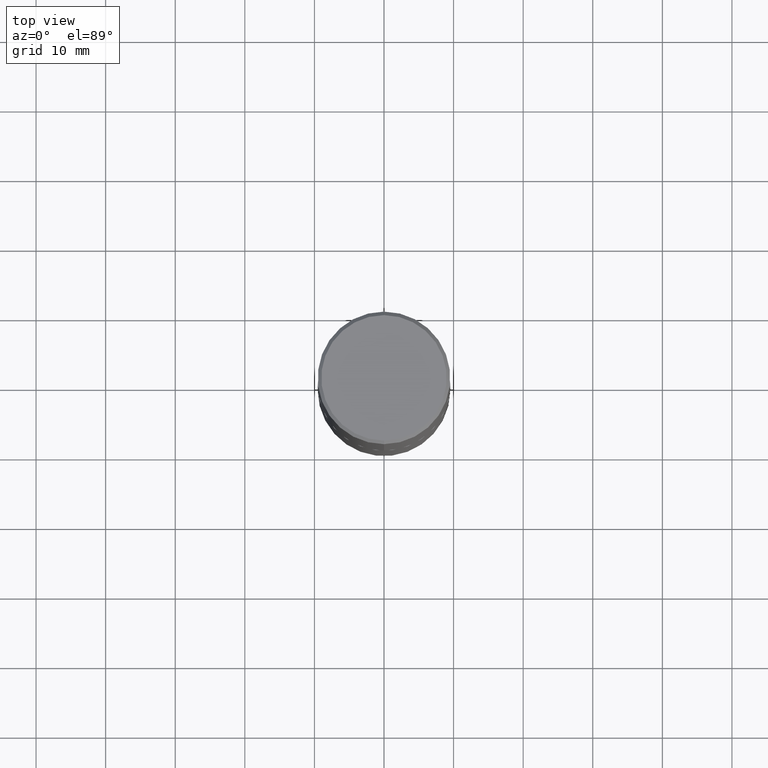
[diagram: clean part render]
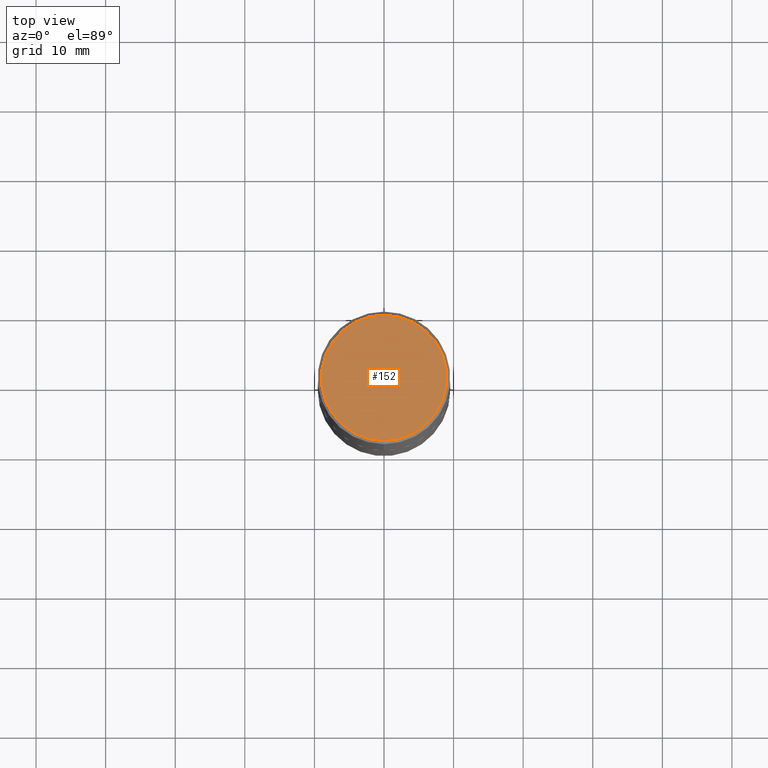
[diagram: same view with one face highlighted and labeled with its STEP entity id]
A machine part, top view. The second image highlights one B-rep face of the part: STEP entity #152.
In plain terms, the highlighted planar face has unit normal (0, -0, -1).
Its self-contained STEP definition (entity closure, byte-faithful):
#1 = VERTEX_POINT ( 'NONE', #11 ) ;
#2 = DIRECTION ( 'NONE',  ( -6.982962677686265922E-15, -1.000000000000000000, 3.492725745712017407E-15 ) ) ;
#11 = CARTESIAN_POINT ( 'NONE',  ( 2.548781377355487507E-15, 0.3549999999999999822, -1.175448187937810043E-15 ) ) ;
#18 = FACE_OUTER_BOUND ( 'NONE', #213, .T. ) ;
#27 = DIRECTION ( 'NONE',  ( -6.982962677686265922E-15, -1.000000000000000000, 3.492725745712017407E-15 ) ) ;
#35 = AXIS2_PLACEMENT_3D ( 'NONE', #97, #369, #2 ) ;
#93 = AXIS2_PLACEMENT_3D ( 'NONE', #140, #204, #299 ) ;
#97 = CARTESIAN_POINT ( 'NONE',  ( -1.576020116281570290E-45, 2.251741140787182714E-31, 6.446945178995578068E-17 ) ) ;
#132 = CIRCLE ( 'NONE', #35, 0.3549999999999999822 ) ;
#140 = CARTESIAN_POINT ( 'NONE',  ( 2.478951750578624209E-15, 0.3549999999999999822, -1.207682913832788389E-15 ) ) ;
#142 = ORIENTED_EDGE ( 'NONE', *, *, #283, .T. ) ;
#152 = ADVANCED_FACE ( 'NONE', ( #18 ), #201, .F. ) ;
#201 = PLANE ( 'NONE',  #93 ) ;
#204 = DIRECTION ( 'NONE',  ( 2.444599841513016780E-29, -3.492725745712018196E-15, -1.000000000000000000 ) ) ;
#213 = EDGE_LOOP ( 'NONE', ( #142, #371 ) ) ;
#256 = CARTESIAN_POINT ( 'NONE',  ( -2.504081769186608610E-15, -0.3549999999999999822, 1.304387091517721851E-15 ) ) ;
#267 = CIRCLE ( 'NONE', #394, 0.3549999999999999822 ) ;
#283 = EDGE_CURVE ( 'NONE', #1, #288, #132, .T. ) ;
#288 = VERTEX_POINT ( 'NONE', #256 ) ;
#296 = CARTESIAN_POINT ( 'NONE',  ( -1.576020116281570290E-45, 2.251741140787182714E-31, 6.446945178995578068E-17 ) ) ;
#299 = DIRECTION ( 'NONE',  ( 6.982962677686265922E-15, 1.000000000000000000, -3.492725745712018196E-15 ) ) ;
#306 = EDGE_CURVE ( 'NONE', #288, #1, #267, .T. ) ;
#360 = DIRECTION ( 'NONE',  ( -2.444599841513017620E-29, 3.492725745712017802E-15, 1.000000000000000000 ) ) ;
#369 = DIRECTION ( 'NONE',  ( -2.444599841513017620E-29, 3.492725745712017802E-15, 1.000000000000000000 ) ) ;
#371 = ORIENTED_EDGE ( 'NONE', *, *, #306, .T. ) ;
#394 = AXIS2_PLACEMENT_3D ( 'NONE', #296, #360, #27 ) ;